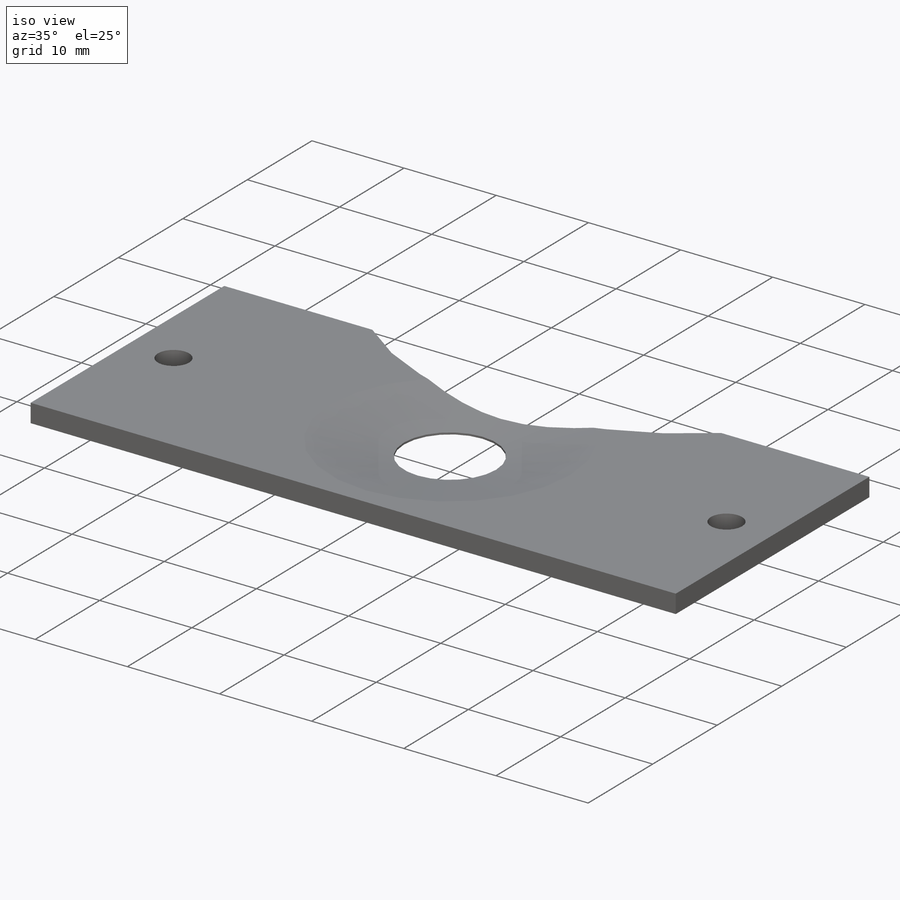
[diagram: iso view]
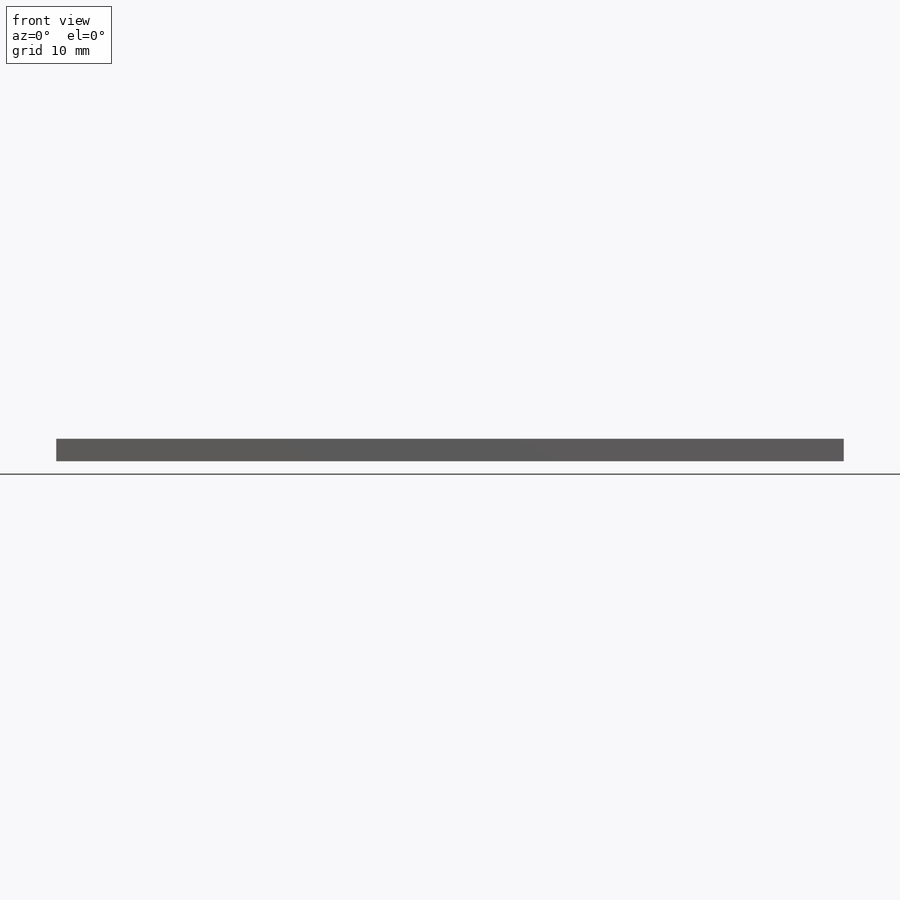
[diagram: front view]
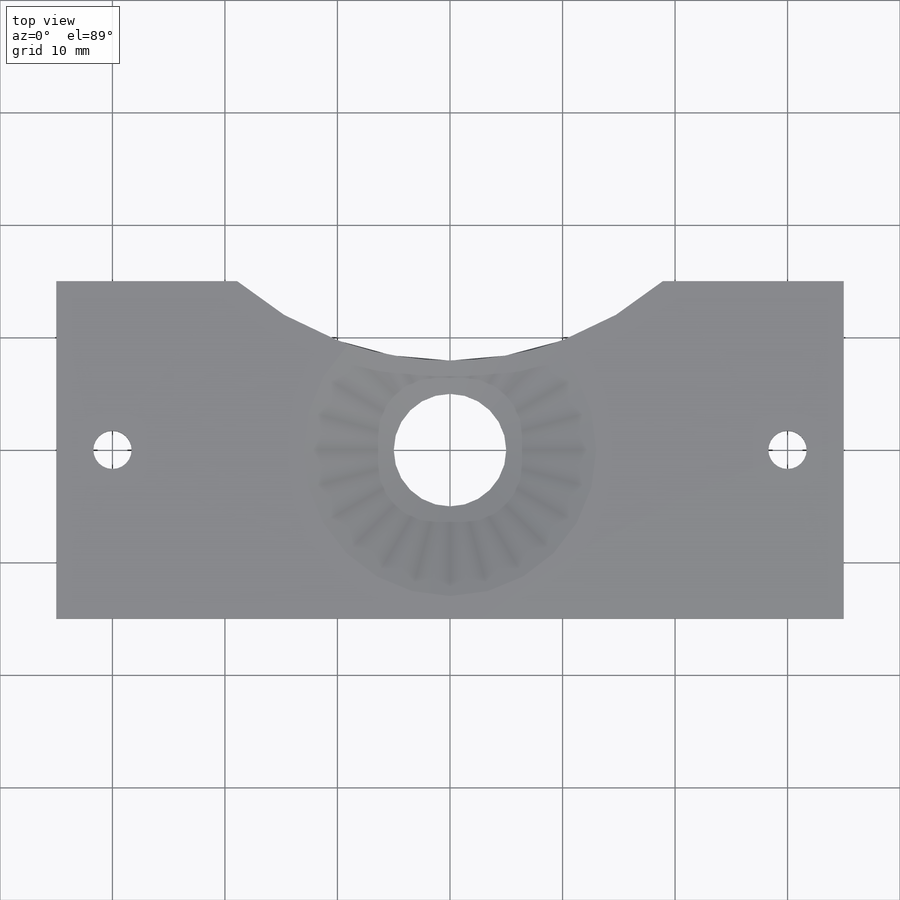
[diagram: top view]
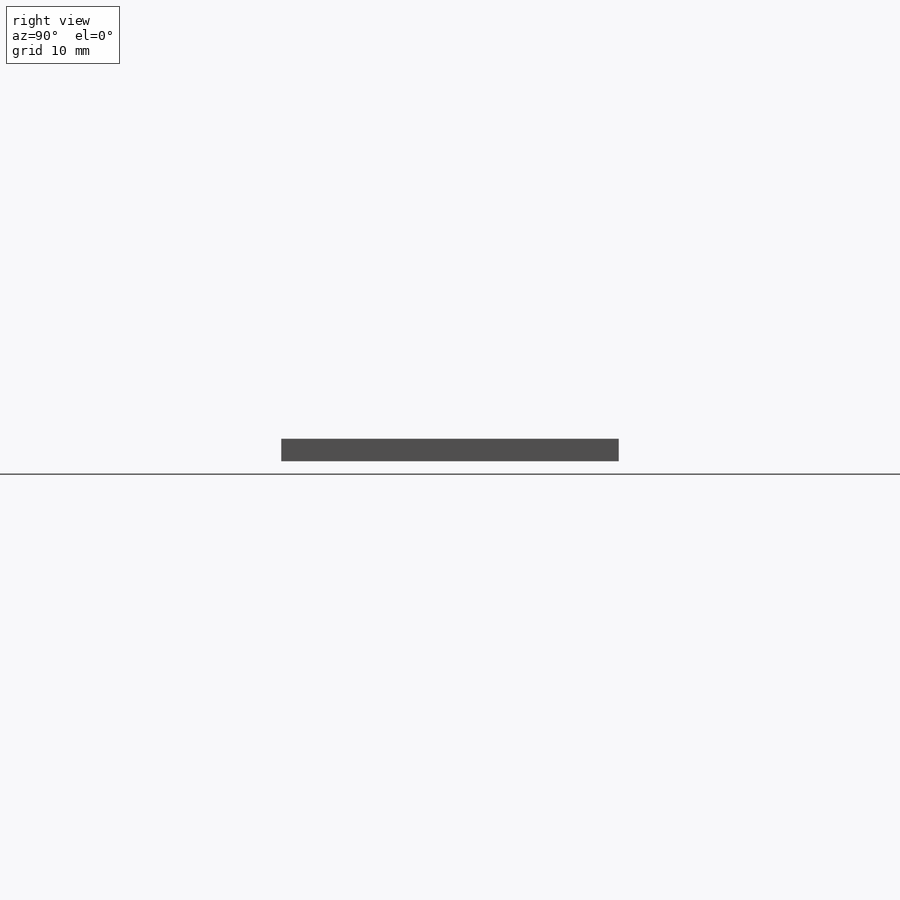
[diagram: right view]
SOLIDWORKS PART (.sldprt)
format: sldprt  version: not decoded by parser v0  size: 187,392 bytes
history: native  units: mm
features: sketch x5, cut_extrude x2, material x1, extrude x1, chamfer x1, hole x1 (+11 scaffold rows collapsed)
feature tree (22):
  scaffold x11  (default folders/planes/origin — collapsed)
  material  "Material <not specified>"
  sketch  "Sketch1"  dims[c1.D5=10.0mm c1.D1=100.0mm c1.D2=30.0mm c1.D3=100.0mm c2.D1=35.0mm c2.D2=35.0mm c2.D3=15.0mm c2.D4=15.0mm]
  extrude  "Extrude1"  Depth=2mm
  chamfer  "Chamfer1"  Distance=8mm
  sketch  "Sketch3"  dims[D1=~6.939303mm]
  cut_extrude  "Cut-Extrude1"  Depth=0.2mm
  hole  "M3 Clearance Hole1"  Diameter=3.4mm Depth=2mm
  sketch  "Sketch6"  dims[D1=5.0mm D2=5.0mm D3=15.0mm D4=5.0mm]
  sketch  "Sketch5"  dims[hole-wizard template sketch: 61 standard entries collapsed; hole parameters above]
  sketch  "Sketch7"
  cut_extrude  "Cut-Extrude2"  [1 undecoded]
decode coverage: 8 of 10 modeling features carry decoded parameters
note: ~ marks probable driven/reference dimensions
note: 1 parameter value undecoded
note: suppression state not decoded; provenance and decode notes live in map.json
